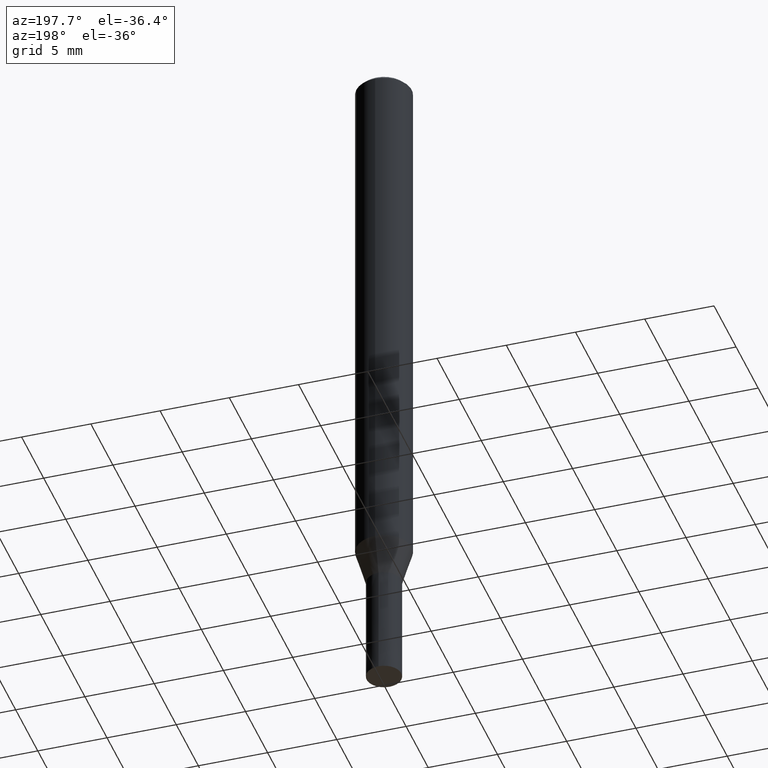
[diagram: clean part render]
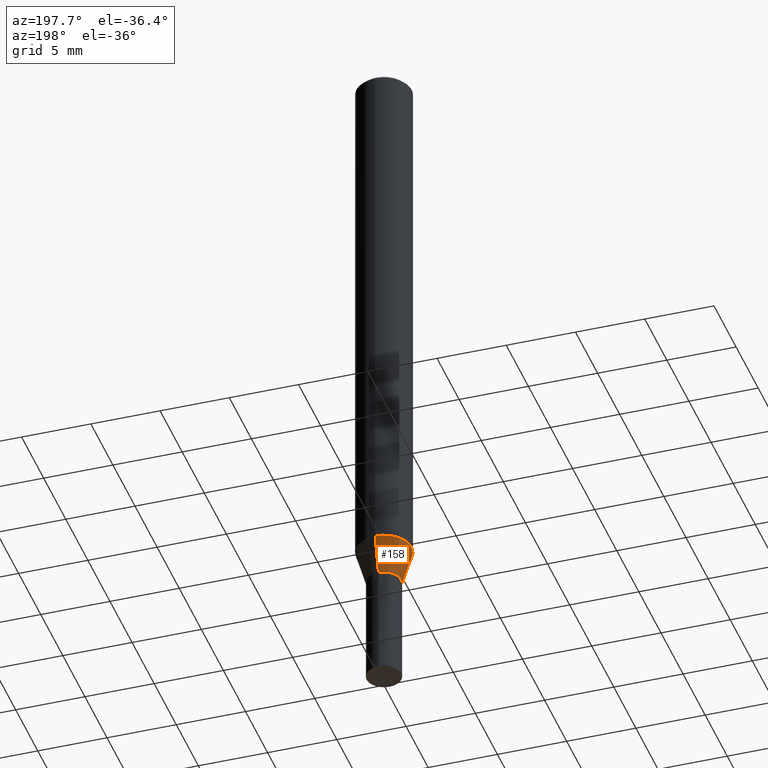
[diagram: same view with one face highlighted and labeled with its STEP entity id]
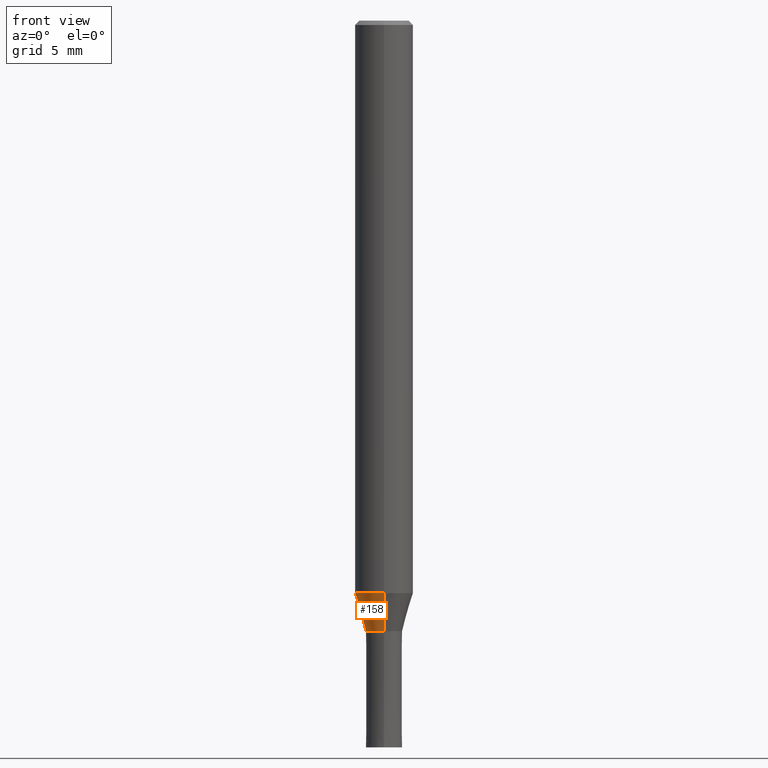
[diagram: same view with one face highlighted and labeled with its STEP entity id]
A machine part, auxiliary view. The second image highlights one B-rep face of the part: STEP entity #158.
A second angle (front view) of the same face is appended — the face is thin or edge-on in the first view.
In plain terms, the highlighted conical surface has half-angle 15.997 deg.
Its self-contained STEP definition (entity closure, byte-faithful):
#84=VERTEX_POINT('',#205);
#88=VERTEX_POINT('',#209);
#92=EDGE_CURVE('',#84,#88,#213,.T.);
#106=EDGE_CURVE('',#160,#88,#227,.T.);
#116=EDGE_CURVE('',#144,#84,#238,.T.);
#144=VERTEX_POINT('',#271);
#152=EDGE_CURVE('',#160,#144,#281,.T.);
#158=ADVANCED_FACE('',(#288),#289,.T.);
#160=VERTEX_POINT('',#291);
#205=CARTESIAN_POINT('',(0.0,1.99995,-39.384));
#209=CARTESIAN_POINT('',(0.0,1.24995,-42.0));
#213=LINE('',#344,#345);
#227=CIRCLE('',#366,1.24995);
#238=CIRCLE('',#378,1.99995);
#271=CARTESIAN_POINT('',(2.44915147732706E-016,-1.99995,-39.384));
#281=LINE('',#427,#428);
#288=FACE_OUTER_BOUND('',#436,.T.);
#289=CONICAL_SURFACE('',#437,1.62495,0.279208199033747);
#291=CARTESIAN_POINT('',(1.53069671196028E-016,-1.24995,-42.0));
#344=CARTESIAN_POINT('',(-1.98992409464367E-016,1.62495,-40.692));
#345=VECTOR('',#480,1.0);
#366=AXIS2_PLACEMENT_3D('',#489,#490,#491);
#378=AXIS2_PLACEMENT_3D('',#504,#505,#506);
#427=CARTESIAN_POINT('',(1.98992409464367E-016,-1.62495,-40.692));
#428=VECTOR('',#561,1.0);
#436=EDGE_LOOP('',(#572,#573,#574,#575));
#437=AXIS2_PLACEMENT_3D('',#576,#577,#578);
#480=DIRECTION('',(3.37494895041124E-017,-0.275594597388538,-0.961273955691222));
#489=CARTESIAN_POINT('',(0.0,0.0,-42.0));
#490=DIRECTION('',(0.0,0.0,-1.0));
#491=DIRECTION('',(0.0,1.0,0.0));
#504=CARTESIAN_POINT('',(0.0,0.0,-39.384));
#505=DIRECTION('',(0.0,0.0,-1.0));
#506=DIRECTION('',(0.0,1.0,0.0));
#561=DIRECTION('',(3.37494895041124E-017,-0.275594597388538,0.961273955691222));
#572=ORIENTED_EDGE('',*,*,#92,.T.);
#573=ORIENTED_EDGE('',*,*,#106,.F.);
#574=ORIENTED_EDGE('',*,*,#152,.T.);
#575=ORIENTED_EDGE('',*,*,#116,.T.);
#576=CARTESIAN_POINT('',(0.0,0.0,-40.692));
#577=DIRECTION('',(-0.0,-0.0,1.0));
#578=DIRECTION('',(0.0,1.0,0.0));